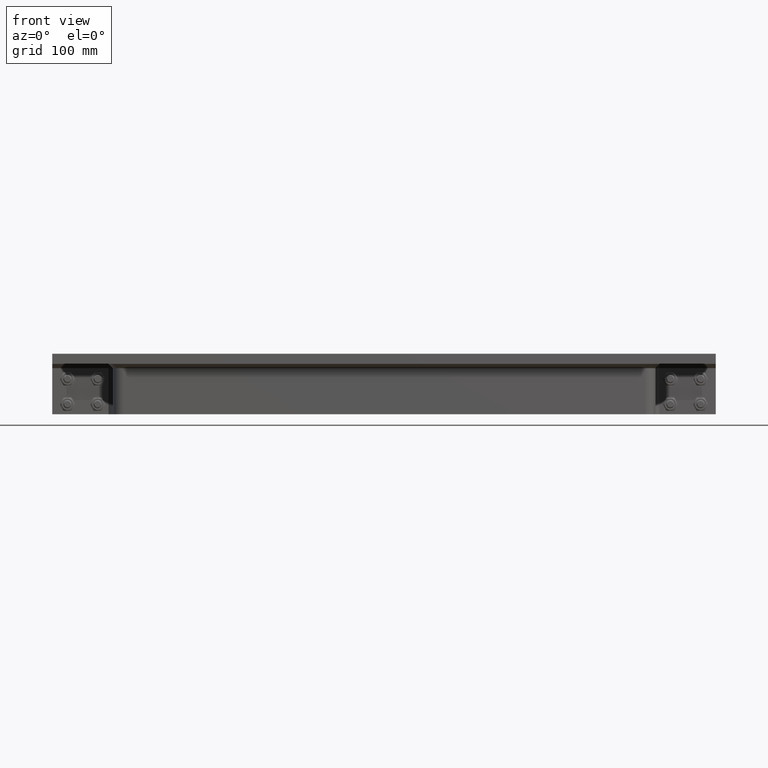
[diagram: clean part render]
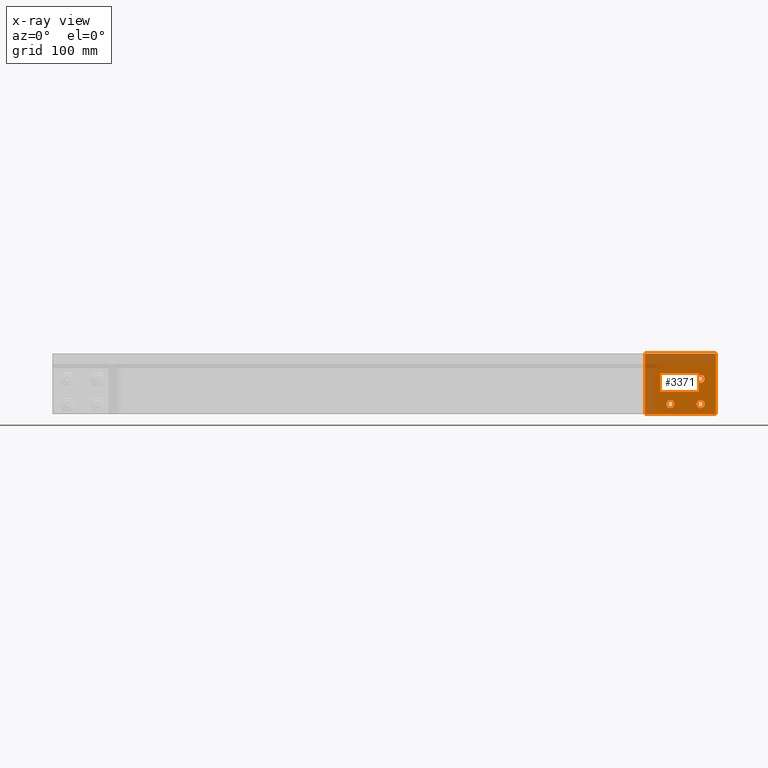
[diagram: x-ray — body ghosted, one internal face saturated and labeled with its STEP entity id]
A machine part, front view, then the same camera in x-ray: the body is ghosted and one INTERNAL B-rep face — a face not visible from any outside direction — is saturated and labeled: STEP entity #3371.
In plain terms, the highlighted planar face has unit normal (0, 1, -0).
Its self-contained STEP definition (entity closure, byte-faithful):
#357=FACE_BOUND('',#930,.T.);
#358=FACE_BOUND('',#931,.T.);
#359=FACE_BOUND('',#932,.T.);
#360=FACE_BOUND('',#933,.T.);
#480=CIRCLE('',#3858,4.);
#482=CIRCLE('',#3861,4.);
#484=CIRCLE('',#3864,4.);
#486=CIRCLE('',#3867,4.);
#664=FACE_OUTER_BOUND('',#929,.T.);
#929=EDGE_LOOP('',(#2843,#2844,#2845,#2846));
#930=EDGE_LOOP('',(#2847));
#931=EDGE_LOOP('',(#2848));
#932=EDGE_LOOP('',(#2849));
#933=EDGE_LOOP('',(#2850));
#1206=LINE('',#5602,#1465);
#1210=LINE('',#5610,#1469);
#1213=LINE('',#5616,#1472);
#1216=LINE('',#5621,#1475);
#1465=VECTOR('',#4624,10.);
#1469=VECTOR('',#4630,10.);
#1472=VECTOR('',#4635,10.);
#1475=VECTOR('',#4640,10.);
#1725=VERTEX_POINT('',#5578);
#1727=VERTEX_POINT('',#5584);
#1729=VERTEX_POINT('',#5590);
#1731=VERTEX_POINT('',#5596);
#1732=VERTEX_POINT('',#5600);
#1733=VERTEX_POINT('',#5601);
#1736=VERTEX_POINT('',#5609);
#1738=VERTEX_POINT('',#5615);
#2105=EDGE_CURVE('',#1725,#1725,#480,.T.);
#2108=EDGE_CURVE('',#1727,#1727,#482,.T.);
#2111=EDGE_CURVE('',#1729,#1729,#484,.T.);
#2114=EDGE_CURVE('',#1731,#1731,#486,.T.);
#2115=EDGE_CURVE('',#1732,#1733,#1206,.T.);
#2119=EDGE_CURVE('',#1733,#1736,#1210,.T.);
#2122=EDGE_CURVE('',#1736,#1738,#1213,.T.);
#2125=EDGE_CURVE('',#1738,#1732,#1216,.T.);
#2843=ORIENTED_EDGE('',*,*,#2125,.T.);
#2844=ORIENTED_EDGE('',*,*,#2115,.T.);
#2845=ORIENTED_EDGE('',*,*,#2119,.T.);
#2846=ORIENTED_EDGE('',*,*,#2122,.T.);
#2847=ORIENTED_EDGE('',*,*,#2105,.T.);
#2848=ORIENTED_EDGE('',*,*,#2108,.T.);
#2849=ORIENTED_EDGE('',*,*,#2111,.T.);
#2850=ORIENTED_EDGE('',*,*,#2114,.T.);
#3221=PLANE('',#3872);
#3371=ADVANCED_FACE('',(#664,#357,#358,#359,#360),#3221,.F.);
#3858=AXIS2_PLACEMENT_3D('',#5580,#4599,#4600);
#3861=AXIS2_PLACEMENT_3D('',#5586,#4606,#4607);
#3864=AXIS2_PLACEMENT_3D('',#5592,#4613,#4614);
#3867=AXIS2_PLACEMENT_3D('',#5598,#4620,#4621);
#3872=AXIS2_PLACEMENT_3D('',#5623,#4642,#4643);
#4599=DIRECTION('center_axis',(0.,0.,1.));
#4600=DIRECTION('ref_axis',(1.,0.,0.));
#4606=DIRECTION('center_axis',(0.,0.,1.));
#4607=DIRECTION('ref_axis',(1.,0.,0.));
#4613=DIRECTION('center_axis',(0.,0.,1.));
#4614=DIRECTION('ref_axis',(1.,0.,0.));
#4620=DIRECTION('center_axis',(0.,0.,1.));
#4621=DIRECTION('ref_axis',(1.,0.,0.));
#4624=DIRECTION('',(2.22044604925031E-16,-1.,0.));
#4630=DIRECTION('',(-1.,0.,0.));
#4635=DIRECTION('',(2.22044604925031E-16,1.,0.));
#4640=DIRECTION('',(1.,0.,0.));
#4642=DIRECTION('center_axis',(0.,0.,1.));
#4643=DIRECTION('ref_axis',(1.,0.,0.));
#5578=CARTESIAN_POINT('',(6.,-20.,0.));
#5580=CARTESIAN_POINT('Origin',(10.,-20.,0.));
#5584=CARTESIAN_POINT('',(-24.,5.00000000000001,0.));
#5586=CARTESIAN_POINT('Origin',(-20.,5.00000000000001,0.));
#5590=CARTESIAN_POINT('',(6.,5.00000000000001,0.));
#5592=CARTESIAN_POINT('Origin',(10.,5.00000000000001,0.));
#5596=CARTESIAN_POINT('',(-24.,-20.,0.));
#5598=CARTESIAN_POINT('Origin',(-20.,-20.,0.));
#5600=CARTESIAN_POINT('',(35.,30.,0.));
#5601=CARTESIAN_POINT('',(35.,-30.,0.));
#5602=CARTESIAN_POINT('',(35.,30.,0.));
#5609=CARTESIAN_POINT('',(-35.,-30.,0.));
#5610=CARTESIAN_POINT('',(35.,-30.,0.));
#5615=CARTESIAN_POINT('',(-35.,30.,0.));
#5616=CARTESIAN_POINT('',(-35.,-30.,0.));
#5621=CARTESIAN_POINT('',(-35.,30.,0.));
#5623=CARTESIAN_POINT('Origin',(0.,5.12410626750072E-15,0.));